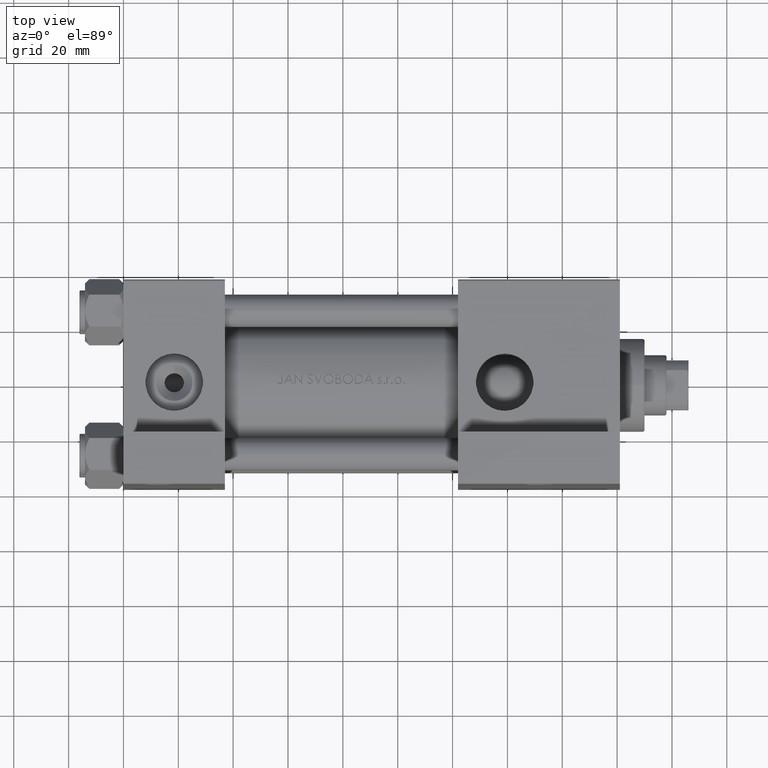
[diagram: clean part render]
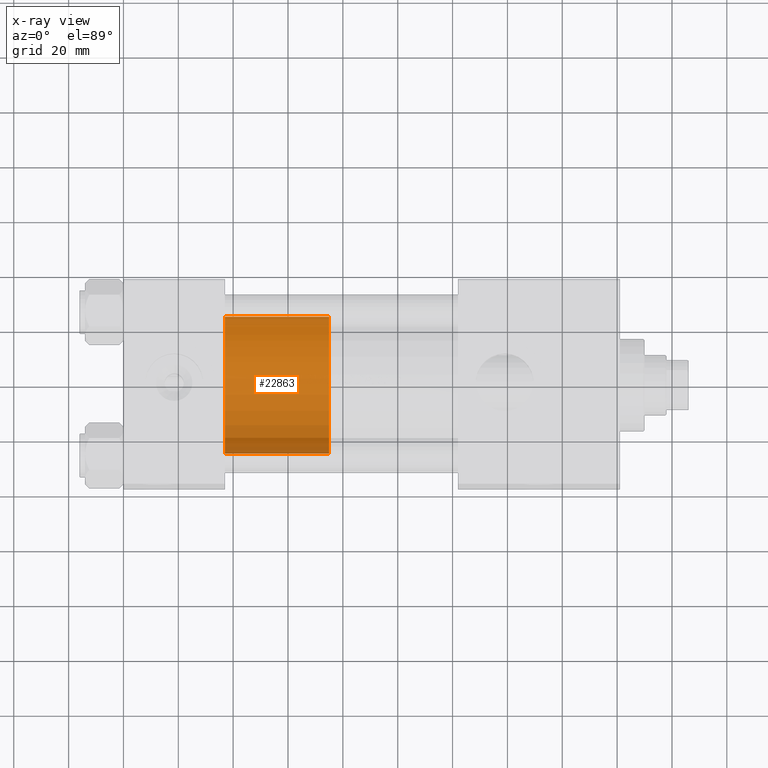
[diagram: x-ray — body ghosted, one internal face saturated and labeled with its STEP entity id]
A machine part, top view, then the same camera in x-ray: the body is ghosted and one INTERNAL B-rep face — a face not visible from any outside direction — is saturated and labeled: STEP entity #22863.
In plain terms, the highlighted cylindrical surface (partial cylindrical patch) has radius 25 mm, axis along (-1, 0, 0).
Its self-contained STEP definition (entity closure, byte-faithful):
#940 = LINE ( 'NONE', #1679, #47104 ) ;
#1679 = CARTESIAN_POINT ( 'NONE',  ( -25.00000000000000000, 0.000000000000000000, 38.00000000000000000 ) ) ;
#2936 = AXIS2_PLACEMENT_3D ( 'NONE', #33488, #25781, #14565 ) ;
#3747 = LINE ( 'NONE', #19181, #36821 ) ;
#9156 = DIRECTION ( 'NONE',  ( -0.000000000000000000, -0.000000000000000000, -1.000000000000000000 ) ) ;
#10893 = CIRCLE ( 'NONE', #37937, 25.00000000000000000 ) ;
#12575 = ORIENTED_EDGE ( 'NONE', *, *, #46575, .F. ) ;
#12658 = VERTEX_POINT ( 'NONE', #31578 ) ;
#14565 = DIRECTION ( 'NONE',  ( -1.000000000000000000, 0.000000000000000000, 0.000000000000000000 ) ) ;
#14959 = ORIENTED_EDGE ( 'NONE', *, *, #32153, .T. ) ;
#15836 = AXIS2_PLACEMENT_3D ( 'NONE', #35173, #23732, #31445 ) ;
#17180 = DIRECTION ( 'NONE',  ( 0.000000000000000000, 0.000000000000000000, 1.000000000000000000 ) ) ;
#18694 = DIRECTION ( 'NONE',  ( -0.000000000000000000, -0.000000000000000000, -1.000000000000000000 ) ) ;
#18821 = CARTESIAN_POINT ( 'NONE',  ( 25.00000000000000000, 3.061616997868383043E-15, 38.00000000000000000 ) ) ;
#19181 = CARTESIAN_POINT ( 'NONE',  ( 25.00000000000000000, 3.061616997868383043E-15, 38.00000000000000000 ) ) ;
#19893 = ORIENTED_EDGE ( 'NONE', *, *, #29085, .T. ) ;
#20212 = VERTEX_POINT ( 'NONE', #18821 ) ;
#22863 = ADVANCED_FACE ( 'NONE', ( #48929 ), #41701, .T. ) ;
#23732 = DIRECTION ( 'NONE',  ( 0.000000000000000000, 0.000000000000000000, 1.000000000000000000 ) ) ;
#25394 = CARTESIAN_POINT ( 'NONE',  ( 0.000000000000000000, 0.000000000000000000, 38.00000000000000000 ) ) ;
#25781 = DIRECTION ( 'NONE',  ( -0.000000000000000000, -0.000000000000000000, -1.000000000000000000 ) ) ;
#29085 = EDGE_CURVE ( 'NONE', #32485, #12658, #37301, .T. ) ;
#31414 = EDGE_CURVE ( 'NONE', #37141, #12658, #940, .T. ) ;
#31445 = DIRECTION ( 'NONE',  ( 1.000000000000000000, 0.000000000000000000, 0.000000000000000000 ) ) ;
#31578 = CARTESIAN_POINT ( 'NONE',  ( -25.00000000000000000, 0.000000000000000000, 0.000000000000000000 ) ) ;
#32153 = EDGE_CURVE ( 'NONE', #20212, #32485, #3747, .T. ) ;
#32485 = VERTEX_POINT ( 'NONE', #45043 ) ;
#33488 = CARTESIAN_POINT ( 'NONE',  ( 0.000000000000000000, 0.000000000000000000, 38.00000000000000000 ) ) ;
#35173 = CARTESIAN_POINT ( 'NONE',  ( 0.000000000000000000, 0.000000000000000000, 0.000000000000000000 ) ) ;
#36675 = CARTESIAN_POINT ( 'NONE',  ( -25.00000000000000000, 0.000000000000000000, 38.00000000000000000 ) ) ;
#36821 = VECTOR ( 'NONE', #18694, 1000.000000000000000 ) ;
#37141 = VERTEX_POINT ( 'NONE', #36675 ) ;
#37301 = CIRCLE ( 'NONE', #15836, 25.00000000000000000 ) ;
#37937 = AXIS2_PLACEMENT_3D ( 'NONE', #25394, #17180, #39834 ) ;
#38795 = ORIENTED_EDGE ( 'NONE', *, *, #31414, .F. ) ;
#39834 = DIRECTION ( 'NONE',  ( 1.000000000000000000, 0.000000000000000000, 0.000000000000000000 ) ) ;
#41701 = CYLINDRICAL_SURFACE ( 'NONE', #2936, 25.00000000000000000 ) ;
#44644 = EDGE_LOOP ( 'NONE', ( #12575, #14959, #19893, #38795 ) ) ;
#45043 = CARTESIAN_POINT ( 'NONE',  ( 25.00000000000000000, 3.061616997868383043E-15, 0.000000000000000000 ) ) ;
#46575 = EDGE_CURVE ( 'NONE', #20212, #37141, #10893, .T. ) ;
#47104 = VECTOR ( 'NONE', #9156, 1000.000000000000000 ) ;
#48929 = FACE_OUTER_BOUND ( 'NONE', #44644, .T. ) ;